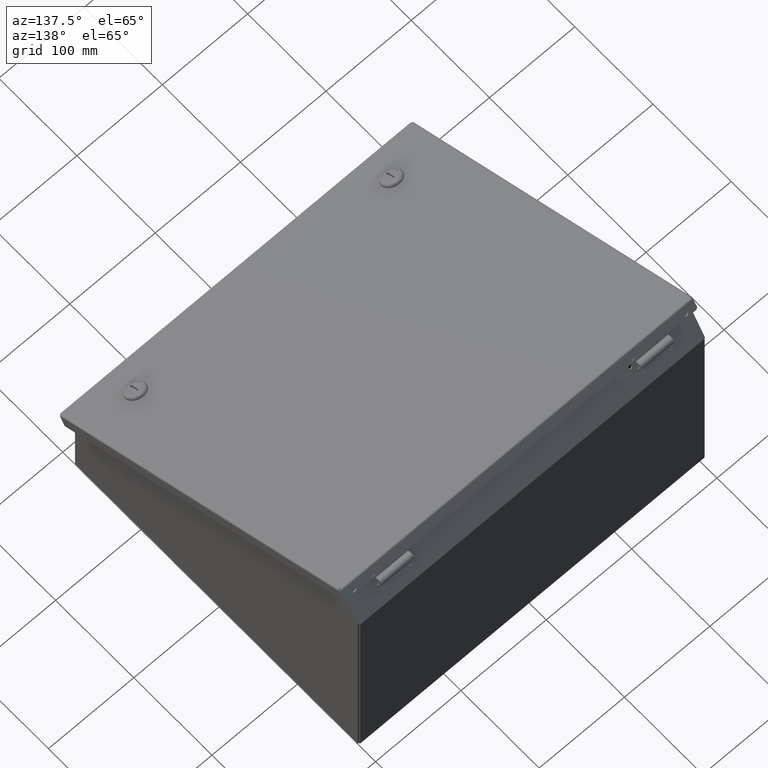
[diagram: clean part render]
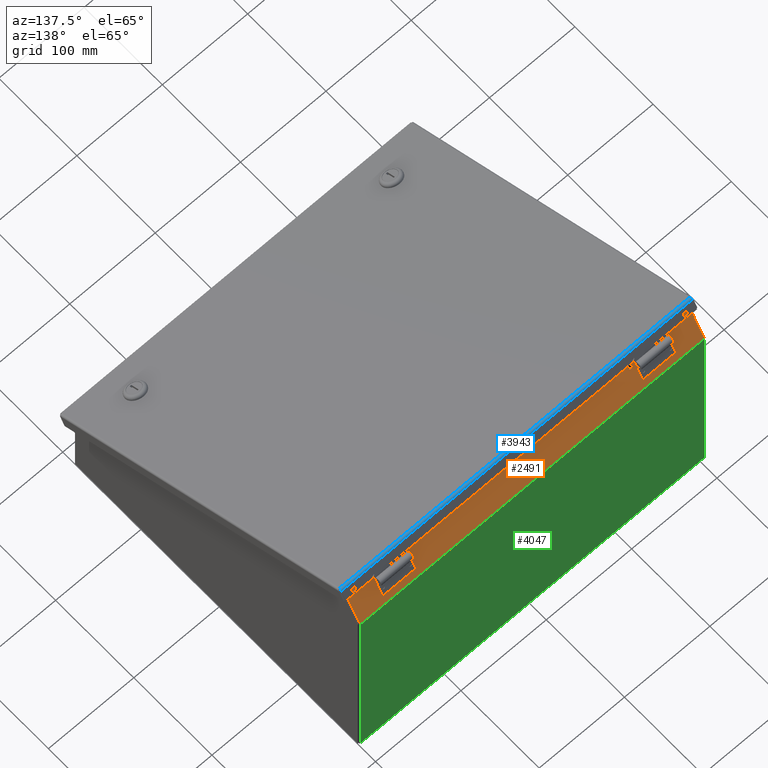
[diagram: same view with three faces highlighted in distinct colors, each labeled with its STEP entity id]
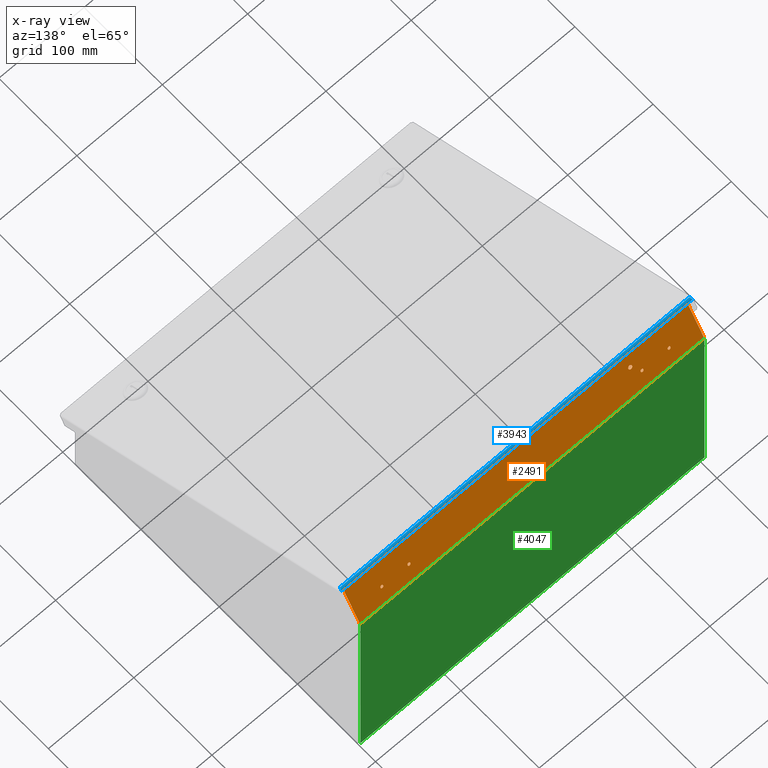
[diagram: x-ray of the same camera — body ghosted, the three highlighted faces saturated]
A machine part, auxiliary view with three faces highlighted in distinct colors.
The next image is the same camera in x-ray (body ghosted, the three faces saturated) — at least one of them is partly hidden behind the body in this view.
Their STEP definitions:

[orange] entity #2491 — the highlighted planar face has unit normal (0, 0.866, 0.5).
#2491 = ADVANCED_FACE( '', ( #6319, #6320, #6321, #6322, #6323, #6324 ), #6325, .T. );
#6319 = FACE_BOUND( '', #12700, .T. );
#6320 = FACE_BOUND( '', #12701, .T. );
#6321 = FACE_BOUND( '', #12702, .T. );
#6322 = FACE_OUTER_BOUND( '', #12703, .T. );
#6323 = FACE_BOUND( '', #12704, .T. );
#6324 = FACE_BOUND( '', #12705, .T. );
#6325 = PLANE( '', #12706 );
#12700 = EDGE_LOOP( '', ( #46205 ) );
#12701 = EDGE_LOOP( '', ( #46206 ) );
#12702 = EDGE_LOOP( '', ( #46207 ) );
#12703 = EDGE_LOOP( '', ( #46208, #46209, #46210, #46211 ) );
#12704 = EDGE_LOOP( '', ( #46212 ) );
#12705 = EDGE_LOOP( '', ( #46213 ) );
#12706 = AXIS2_PLACEMENT_3D( '', #46214, #46215, #46216 );
#46205 = ORIENTED_EDGE( '', *, *, #65143, .F. );
#46206 = ORIENTED_EDGE( '', *, *, #65144, .F. );
#46207 = ORIENTED_EDGE( '', *, *, #65145, .F. );
#46208 = ORIENTED_EDGE( '', *, *, #65146, .T. );
#46209 = ORIENTED_EDGE( '', *, *, #65147, .T. );
#46210 = ORIENTED_EDGE( '', *, *, #65148, .T. );
#46211 = ORIENTED_EDGE( '', *, *, #65149, .T. );
#46212 = ORIENTED_EDGE( '', *, *, #65150, .F. );
#46213 = ORIENTED_EDGE( '', *, *, #65151, .F. );
#46214 = CARTESIAN_POINT( '', ( 0.000000000000000, 242.691988352072, 140.118284805234 ) );
#46215 = DIRECTION( '', ( 0.000000000000000, 0.866025403784439, 0.500000000000000 ) );
#46216 = DIRECTION( '', ( 0.000000000000000, -0.500000000000000, 0.866025403784439 ) );
#65143 = EDGE_CURVE( '', #71315, #71315, #71316, .T. );
#65144 = EDGE_CURVE( '', #71317, #71317, #71318, .T. );
#65145 = EDGE_CURVE( '', #71319, #71319, #71320, .T. );
#65146 = EDGE_CURVE( '', #71321, #71322, #71323, .T. );
#65147 = EDGE_CURVE( '', #71322, #71324, #71325, .T. );
#65148 = EDGE_CURVE( '', #71324, #71326, #71327, .T. );
#65149 = EDGE_CURVE( '', #71326, #71321, #71328, .T. );
#65150 = EDGE_CURVE( '', #71329, #71329, #71330, .T. );
#65151 = EDGE_CURVE( '', #71331, #71331, #71332, .T. );
#71315 = VERTEX_POINT( '', #81031 );
#71316 = CIRCLE( '', #81032, 2.14630000000000 );
#71317 = VERTEX_POINT( '', #81033 );
#71318 = CIRCLE( '', #81034, 1.58750000000000 );
#71319 = VERTEX_POINT( '', #81035 );
#71320 = CIRCLE( '', #81036, 1.58750000000000 );
#71321 = VERTEX_POINT( '', #81037 );
#71322 = VERTEX_POINT( '', #81038 );
#71323 = LINE( '', #81039, #81040 );
#71324 = VERTEX_POINT( '', #81041 );
#71325 = LINE( '', #81042, #81043 );
#71326 = VERTEX_POINT( '', #81044 );
#71327 = LINE( '', #81045, #81046 );
#71328 = LINE( '', #81047, #81048 );
#71329 = VERTEX_POINT( '', #81049 );
#71330 = CIRCLE( '', #81050, 1.58750000000000 );
#71331 = VERTEX_POINT( '', #81051 );
#71332 = CIRCLE( '', #81052, 1.58750000000000 );
#81031 = CARTESIAN_POINT( '', ( -127.990600000000, 166.617650000000, 271.882903983207 ) );
#81032 = AXIS2_PLACEMENT_3D( '', #104157, #104158, #104159 );
#81033 = CARTESIAN_POINT( '', ( 168.275000000000, 172.650150000000, 261.434307486548 ) );
#81034 = AXIS2_PLACEMENT_3D( '', #104160, #104161, #104162 );
#81035 = CARTESIAN_POINT( '', ( -136.525000000000, 172.650150000000, 261.434307486548 ) );
#81036 = AXIS2_PLACEMENT_3D( '', #104163, #104164, #104165 );
#81037 = CARTESIAN_POINT( '', ( -201.676000000000, 181.995428163563, 245.247810896392 ) );
#81038 = CARTESIAN_POINT( '', ( -201.676000000000, 161.251900000000, 281.176655603920 ) );
#81039 = CARTESIAN_POINT( '', ( -201.676000000000, 182.102820890433, 245.061801237092 ) );
#81040 = VECTOR( '', #104166, 1000.00000000000 );
#81041 = CARTESIAN_POINT( '', ( 201.676000000000, 161.251900000000, 281.176655603920 ) );
#81042 = CARTESIAN_POINT( '', ( -201.676000000000, 161.251900000000, 281.176655603920 ) );
#81043 = VECTOR( '', #104167, 1000.00000000000 );
#81044 = CARTESIAN_POINT( '', ( 201.676000000000, 181.995428163563, 245.247810896392 ) );
#81045 = CARTESIAN_POINT( '', ( 201.676000000000, 182.102820890433, 245.061801237092 ) );
#81046 = VECTOR( '', #104168, 1000.00000000000 );
#81047 = CARTESIAN_POINT( '', ( 201.676000000000, 181.995428163563, 245.247810896392 ) );
#81048 = VECTOR( '', #104169, 1000.00000000000 );
#81049 = CARTESIAN_POINT( '', ( -168.275000000000, 172.650150000000, 261.434307486548 ) );
#81050 = AXIS2_PLACEMENT_3D( '', #104170, #104171, #104172 );
#81051 = CARTESIAN_POINT( '', ( 136.525000000000, 172.650150000000, 261.434307486548 ) );
#81052 = AXIS2_PLACEMENT_3D( '', #104173, #104174, #104175 );
#104157 = CARTESIAN_POINT( '', ( -127.990600000000, 167.690800000000, 270.024153659065 ) );
#104158 = DIRECTION( '', ( 0.000000000000000, 0.866025403784439, 0.500000000000000 ) );
#104159 = DIRECTION( '', ( 0.000000000000000, -0.500000000000000, 0.866025403784439 ) );
#104160 = CARTESIAN_POINT( '', ( 168.275000000000, 173.443900000000, 260.059492158040 ) );
#104161 = DIRECTION( '', ( 0.000000000000000, 0.866025403784439, 0.500000000000000 ) );
#104162 = DIRECTION( '', ( 0.000000000000000, -0.500000000000000, 0.866025403784439 ) );
#104163 = CARTESIAN_POINT( '', ( -136.525000000000, 173.443900000000, 260.059492158040 ) );
#104164 = DIRECTION( '', ( 0.000000000000000, 0.866025403784439, 0.500000000000000 ) );
#104165 = DIRECTION( '', ( 0.000000000000000, -0.500000000000000, 0.866025403784439 ) );
#104166 = DIRECTION( '', ( 0.000000000000000, -0.500000000000000, 0.866025403784439 ) );
#104167 = DIRECTION( '', ( 1.00000000000000, 0.000000000000000, 0.000000000000000 ) );
#104168 = DIRECTION( '', ( 0.000000000000000, 0.500000000000000, -0.866025403784439 ) );
#104169 = DIRECTION( '', ( -1.00000000000000, 0.000000000000000, 0.000000000000000 ) );
#104170 = CARTESIAN_POINT( '', ( -168.275000000000, 173.443900000000, 260.059492158040 ) );
#104171 = DIRECTION( '', ( 0.000000000000000, 0.866025403784439, 0.500000000000000 ) );
#104172 = DIRECTION( '', ( 0.000000000000000, -0.500000000000000, 0.866025403784439 ) );
#104173 = CARTESIAN_POINT( '', ( 136.525000000000, 173.443900000000, 260.059492158040 ) );
#104174 = DIRECTION( '', ( 0.000000000000000, 0.866025403784439, 0.500000000000000 ) );
#104175 = DIRECTION( '', ( 0.000000000000000, -0.500000000000000, 0.866025403784439 ) );

[blue] entity #3943 — the highlighted cylindrical surface (edge-blend (fillet) strip) has radius 2.3368 mm, axis along (-1, -0, 0).
#3943 = ADVANCED_FACE( '', ( #8689 ), #8690, .T. );
#8689 = FACE_OUTER_BOUND( '', #25906, .T. );
#8690 = CYLINDRICAL_SURFACE( '', #25907, 2.33680000000000 );
#25906 = EDGE_LOOP( '', ( #54327, #54328, #54329, #54330 ) );
#25907 = AXIS2_PLACEMENT_3D( '', #54331, #54332, #54333 );
#54327 = ORIENTED_EDGE( '', *, *, #68472, .T. );
#54328 = ORIENTED_EDGE( '', *, *, #67595, .F. );
#54329 = ORIENTED_EDGE( '', *, *, #68332, .T. );
#54330 = ORIENTED_EDGE( '', *, *, #68118, .T. );
#54331 = CARTESIAN_POINT( '', ( 204.851000000000, 205.117700000000, -0.812800000000000 ) );
#54332 = DIRECTION( '', ( -1.00000000000000, -6.12323399573677E-017, -0.000000000000000 ) );
#54333 = DIRECTION( '', ( 0.000000000000000, 0.000000000000000, -1.00000000000000 ) );
#67595 = EDGE_CURVE( '', #73785, #75391, #75392, .T. );
#68118 = EDGE_CURVE( '', #76158, #72087, #76159, .T. );
#68332 = EDGE_CURVE( '', #73785, #76158, #76475, .T. );
#68472 = EDGE_CURVE( '', #72087, #75391, #76669, .T. );
#72087 = VERTEX_POINT( '', #83922 );
#73785 = VERTEX_POINT( '', #88670 );
#75391 = VERTEX_POINT( '', #93141 );
#75392 = LINE( '', #93142, #93143 );
#76158 = VERTEX_POINT( '', #95235 );
#76159 = LINE( '', #95236, #95237 );
#76475 = B_SPLINE_CURVE_WITH_KNOTS( '', 3, ( #96291, #96292, #96293, #96294, #96295, #96296, #96297, #96298, #96299, #96300 ), .UNSPECIFIED., .F., .F., ( 4, 2, 2, 2, 4 ), ( 0.000000000000000, 0.250000000000000, 0.500000000000000, 0.750000000000000, 1.00000000000000 ), .UNSPECIFIED. );
#76669 = B_SPLINE_CURVE_WITH_KNOTS( '', 3, ( #96796, #96797, #96798, #96799, #96800, #96801, #96802, #96803, #96804, #96805 ), .UNSPECIFIED., .F., .F., ( 4, 2, 2, 2, 4 ), ( 0.000000000000000, 0.250000000000000, 0.500000000000000, 0.750000000000000, 1.00000000000000 ), .UNSPECIFIED. );
#83922 = CARTESIAN_POINT( '', ( -205.660971572875, 207.454500000000, -0.812799999999942 ) );
#88670 = CARTESIAN_POINT( '', ( 204.851000000000, 205.117700000000, 1.52400000000000 ) );
#93141 = CARTESIAN_POINT( '', ( -204.851000000000, 205.117700000000, 1.52400000000000 ) );
#93142 = CARTESIAN_POINT( '', ( -207.187800000000, 205.117700000000, 1.52400000000000 ) );
#93143 = VECTOR( '', #105424, 1000.00000000000 );
#95235 = CARTESIAN_POINT( '', ( 205.660971572875, 207.454500000000, -0.812800000000000 ) );
#95236 = CARTESIAN_POINT( '', ( 1437.46220000000, 207.454500000000, -0.812799999999986 ) );
#95237 = VECTOR( '', #105766, 1000.00000000000 );
#96291 = CARTESIAN_POINT( '', ( 204.851000000000, 205.117700000000, 1.52400000000000 ) );
#96292 = CARTESIAN_POINT( '', ( 204.918497631073, 205.423586404704, 1.52400000000000 ) );
#96293 = CARTESIAN_POINT( '', ( 204.985995262146, 205.729352456171, 1.46317935083852 ) );
#96294 = CARTESIAN_POINT( '', ( 205.120990524292, 206.294556833331, 1.22906403230623 ) );
#96295 = CARTESIAN_POINT( '', ( 205.188488155365, 206.553772775237, 1.05586147731607 ) );
#96296 = CARTESIAN_POINT( '', ( 205.323483417511, 206.986361477316, 0.623272775237381 ) );
#96297 = CARTESIAN_POINT( '', ( 205.390981048584, 207.159564032306, 0.364056833330717 ) );
#96298 = CARTESIAN_POINT( '', ( 205.525976310730, 207.393679350839, -0.201147543829236 ) );
#96299 = CARTESIAN_POINT( '', ( 205.593473941802, 207.454500000000, -0.506913595295477 ) );
#96300 = CARTESIAN_POINT( '', ( 205.660971572875, 207.454500000000, -0.812800000000004 ) );
#96796 = CARTESIAN_POINT( '', ( -205.660971572875, 207.454500000000, -0.812799999999946 ) );
#96797 = CARTESIAN_POINT( '', ( -205.593473941802, 207.454500000000, -0.506913595295419 ) );
#96798 = CARTESIAN_POINT( '', ( -205.525976310729, 207.393679350839, -0.201147543829179 ) );
#96799 = CARTESIAN_POINT( '', ( -205.390981048583, 207.159564032306, 0.364056833330768 ) );
#96800 = CARTESIAN_POINT( '', ( -205.323483417510, 206.986361477316, 0.623272775237428 ) );
#96801 = CARTESIAN_POINT( '', ( -205.188488155365, 206.553772775237, 1.05586147731610 ) );
#96802 = CARTESIAN_POINT( '', ( -205.120990524292, 206.294556833331, 1.22906403230626 ) );
#96803 = CARTESIAN_POINT( '', ( -204.985995262146, 205.729352456171, 1.46317935083854 ) );
#96804 = CARTESIAN_POINT( '', ( -204.918497631073, 205.423586404704, 1.52400000000001 ) );
#96805 = CARTESIAN_POINT( '', ( -204.851000000000, 205.117700000000, 1.52400000000000 ) );
#105424 = DIRECTION( '', ( -1.00000000000000, 0.000000000000000, 2.10504869441520E-018 ) );
#105766 = DIRECTION( '', ( -1.00000000000000, 5.79262027529397E-017, 1.81019383602936E-018 ) );

[green] entity #4047 — the highlighted planar face has unit normal (0, 1, 0).
#4047 = ADVANCED_FACE( '', ( #8854 ), #8855, .T. );
#8854 = FACE_OUTER_BOUND( '', #26675, .T. );
#8855 = PLANE( '', #26676 );
#26675 = EDGE_LOOP( '', ( #54890, #54891, #54892, #54893 ) );
#26676 = AXIS2_PLACEMENT_3D( '', #54894, #54895, #54896 );
#54890 = ORIENTED_EDGE( '', *, *, #68648, .T. );
#54891 = ORIENTED_EDGE( '', *, *, #67460, .T. );
#54892 = ORIENTED_EDGE( '', *, *, #68084, .T. );
#54893 = ORIENTED_EDGE( '', *, *, #68649, .T. );
#54894 = CARTESIAN_POINT( '', ( 0.000000000000000, 182.308500000000, 1.10698579630227E-014 ) );
#54895 = DIRECTION( '', ( 0.000000000000000, 1.00000000000000, 6.12323399573677E-017 ) );
#54896 = DIRECTION( '', ( 0.000000000000000, -6.12323399573677E-017, 1.00000000000000 ) );
#67460 = EDGE_CURVE( '', #75185, #75186, #75187, .T. );
#68084 = EDGE_CURVE( '', #75186, #76106, #76108, .T. );
#68648 = EDGE_CURVE( '', #76911, #75185, #76912, .T. );
#68649 = EDGE_CURVE( '', #76106, #76911, #76913, .T. );
#75185 = VERTEX_POINT( '', #92534 );
#75186 = VERTEX_POINT( '', #92535 );
#75187 = LINE( '', #92536, #92537 );
#76106 = VERTEX_POINT( '', #95089 );
#76108 = LINE( '', #95091, #95092 );
#76911 = VERTEX_POINT( '', #97360 );
#76912 = LINE( '', #97361, #97362 );
#76913 = LINE( '', #97363, #97364 );
#92534 = CARTESIAN_POINT( '', ( -201.676000000000, 182.308500000000, 244.079410896392 ) );
#92535 = CARTESIAN_POINT( '', ( 201.676000000000, 182.308500000000, 244.079410896392 ) );
#92536 = CARTESIAN_POINT( '', ( -201.676000000000, 182.308500000000, 244.079410896392 ) );
#92537 = VECTOR( '', #105338, 1000.00000000000 );
#95089 = CARTESIAN_POINT( '', ( 201.676000000000, 182.308500000000, 2.33680000000000 ) );
#95091 = CARTESIAN_POINT( '', ( 201.676000000000, 182.308500000000, 1.39679777893409 ) );
#95092 = VECTOR( '', #105736, 1000.00000000000 );
#97360 = CARTESIAN_POINT( '', ( -201.676000000000, 182.308500000000, 2.33680000000000 ) );
#97361 = CARTESIAN_POINT( '', ( -201.676000000000, 182.308500000000, 1.39679777893409 ) );
#97362 = VECTOR( '', #106060, 1000.00000000000 );
#97363 = CARTESIAN_POINT( '', ( 201.676000000000, 182.308500000000, 2.33680000000000 ) );
#97364 = VECTOR( '', #106061, 1000.00000000000 );
#105338 = DIRECTION( '', ( 1.00000000000000, 0.000000000000000, 0.000000000000000 ) );
#105736 = DIRECTION( '', ( -1.12851213364181E-016, 6.12323399573677E-017, -1.00000000000000 ) );
#106060 = DIRECTION( '', ( 1.12851213364181E-016, -6.12323399573677E-017, 1.00000000000000 ) );
#106061 = DIRECTION( '', ( -1.00000000000000, 0.000000000000000, 0.000000000000000 ) );